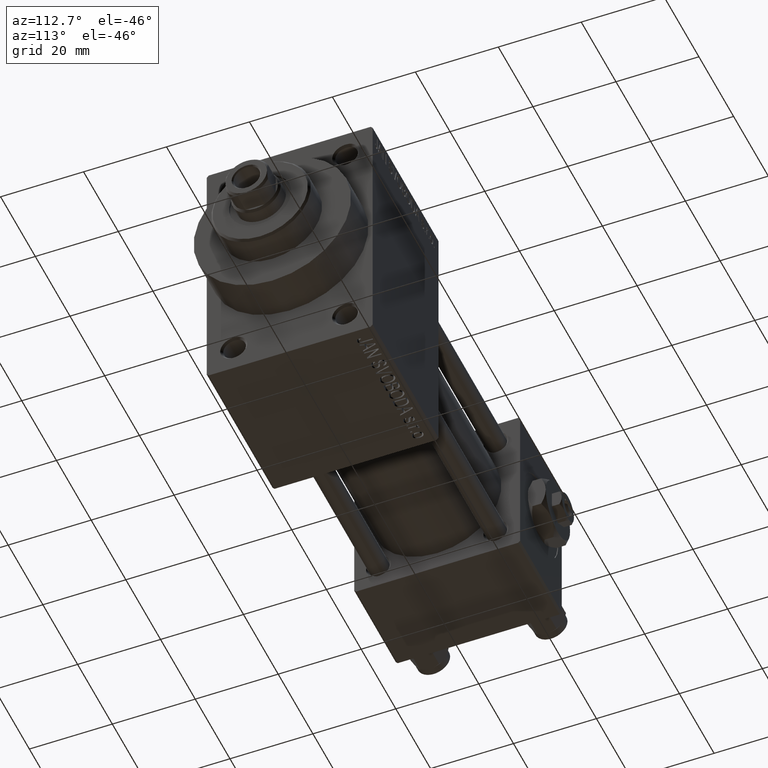
[diagram: clean part render]
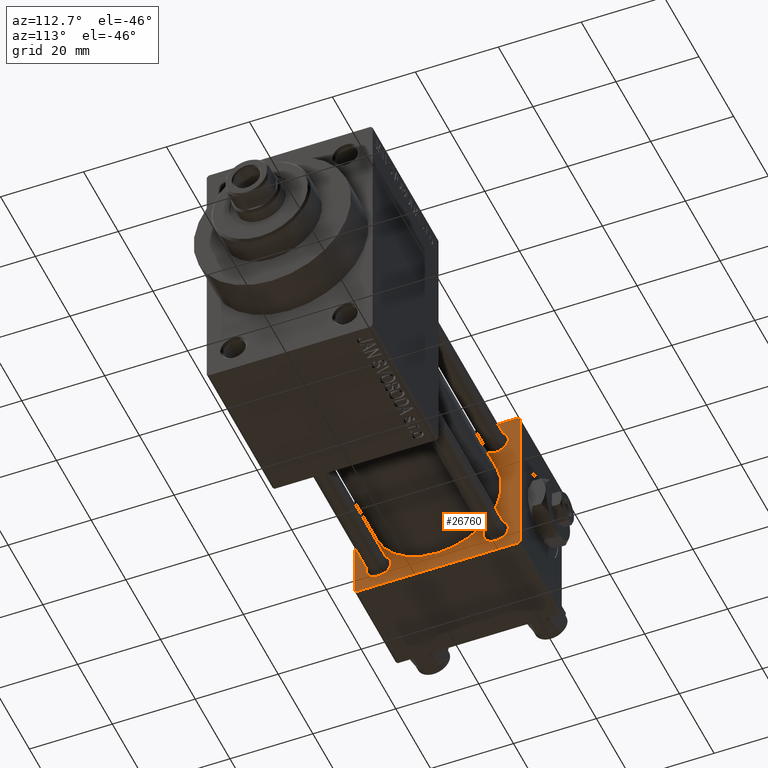
[diagram: same view with one face highlighted and labeled with its STEP entity id]
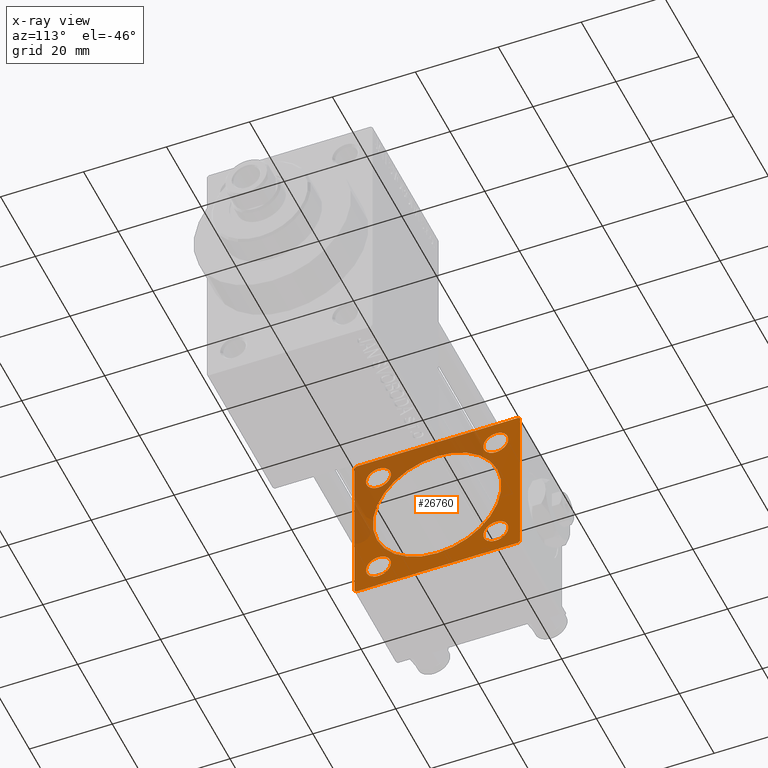
[diagram: x-ray of the same camera — body ghosted, the highlighted face saturated]
A machine part, auxiliary view. The second image highlights one B-rep face of the part: STEP entity #26760.
The next image is the same camera in x-ray: the body ghosted, the highlighted face saturated — about 35% of this face is hidden behind the body in this view.
In plain terms, the highlighted planar face has unit normal (-1, 0, 0).
Its self-contained STEP definition (entity closure, byte-faithful):
#290 = EDGE_LOOP ( 'NONE', ( #41539, #47013 ) ) ;
#565 = CARTESIAN_POINT ( 'NONE',  ( 24.00000000000000000, -19.50000000000000711, -20.00000000000000000 ) ) ;
#718 = EDGE_CURVE ( 'NONE', #2633, #23794, #43086, .T. ) ;
#759 = DIRECTION ( 'NONE',  ( 0.000000000000000000, 8.673617379884036705E-17, -1.000000000000000000 ) ) ;
#833 = CARTESIAN_POINT ( 'NONE',  ( 24.00000000000000000, -14.14999999999999503, 14.15000000000000391 ) ) ;
#1094 = EDGE_LOOP ( 'NONE', ( #17881, #33433 ) ) ;
#1192 = CARTESIAN_POINT ( 'NONE',  ( 24.00000000000000000, 20.00000000000000000, 20.00000000000000000 ) ) ;
#1813 = FACE_BOUND ( 'NONE', #1094, .T. ) ;
#1899 = EDGE_CURVE ( 'NONE', #27851, #4557, #23399, .T. ) ;
#2077 = CARTESIAN_POINT ( 'NONE',  ( 24.00000000000000000, 20.00000000000000000, 19.49999999999999289 ) ) ;
#2353 = ORIENTED_EDGE ( 'NONE', *, *, #26391, .F. ) ;
#2543 = ORIENTED_EDGE ( 'NONE', *, *, #23723, .T. ) ;
#2633 = VERTEX_POINT ( 'NONE', #35814 ) ;
#3378 = CARTESIAN_POINT ( 'NONE',  ( 24.00000000000000000, -14.14999999999999503, 11.15000000000002878 ) ) ;
#3504 = CIRCLE ( 'NONE', #31065, 2.999999999999945377 ) ;
#3593 = CARTESIAN_POINT ( 'NONE',  ( 24.00000000000000000, -20.00000000000000000, -19.49999999999999645 ) ) ;
#3639 = AXIS2_PLACEMENT_3D ( 'NONE', #31353, #41989, #8188 ) ;
#4126 = AXIS2_PLACEMENT_3D ( 'NONE', #13773, #32528, #24886 ) ;
#4517 = LINE ( 'NONE', #565, #45402 ) ;
#4557 = VERTEX_POINT ( 'NONE', #11707 ) ;
#4570 = LINE ( 'NONE', #23077, #36411 ) ;
#4580 = DIRECTION ( 'NONE',  ( 0.000000000000000000, -1.000000000000000000, 1.734723475976807094E-16 ) ) ;
#4763 = VERTEX_POINT ( 'NONE', #7164 ) ;
#5997 = ORIENTED_EDGE ( 'NONE', *, *, #29099, .T. ) ;
#6256 = DIRECTION ( 'NONE',  ( 0.000000000000000000, -1.000000000000000000, -2.602085213965210149E-16 ) ) ;
#6337 = DIRECTION ( 'NONE',  ( 0.000000000000000000, -0.7071067811865425767, 0.7071067811865525687 ) ) ;
#6727 = CARTESIAN_POINT ( 'NONE',  ( 24.00000000000000000, 19.50000000000000711, -20.00000000000000711 ) ) ;
#7164 = CARTESIAN_POINT ( 'NONE',  ( 24.00000000000000000, 14.14999999999999858, 17.14999999999994884 ) ) ;
#8030 = EDGE_LOOP ( 'NONE', ( #9257, #9994 ) ) ;
#8188 = DIRECTION ( 'NONE',  ( 0.000000000000000000, 0.000000000000000000, 1.000000000000000000 ) ) ;
#8590 = VERTEX_POINT ( 'NONE', #18581 ) ;
#8836 = CIRCLE ( 'NONE', #13589, 2.999999999999976463 ) ;
#9257 = ORIENTED_EDGE ( 'NONE', *, *, #1899, .F. ) ;
#9588 = DIRECTION ( 'NONE',  ( 0.000000000000000000, 0.000000000000000000, -1.000000000000000000 ) ) ;
#9769 = VERTEX_POINT ( 'NONE', #45168 ) ;
#9994 = ORIENTED_EDGE ( 'NONE', *, *, #21126, .F. ) ;
#10257 = AXIS2_PLACEMENT_3D ( 'NONE', #28699, #35355, #31903 ) ;
#10437 = VECTOR ( 'NONE', #759, 1000.000000000000000 ) ;
#11280 = LINE ( 'NONE', #30752, #34915 ) ;
#11707 = CARTESIAN_POINT ( 'NONE',  ( 24.00000000000000000, -7.038826752868131828E-16, -15.50000000000000000 ) ) ;
#12090 = CIRCLE ( 'NONE', #27876, 15.50000000000000000 ) ;
#12558 = VECTOR ( 'NONE', #4580, 1000.000000000000000 ) ;
#13193 = VERTEX_POINT ( 'NONE', #3593 ) ;
#13589 = AXIS2_PLACEMENT_3D ( 'NONE', #26135, #19454, #37471 ) ;
#13773 = CARTESIAN_POINT ( 'NONE',  ( 24.00000000000000000, -14.14999999999999503, -14.15000000000000391 ) ) ;
#14119 = LINE ( 'NONE', #31912, #28294 ) ;
#14198 = EDGE_CURVE ( 'NONE', #23794, #2633, #42642, .T. ) ;
#15043 = AXIS2_PLACEMENT_3D ( 'NONE', #34644, #45266, #23052 ) ;
#15257 = EDGE_CURVE ( 'NONE', #29297, #4763, #19799, .T. ) ;
#15264 = DIRECTION ( 'NONE',  ( 0.000000000000000000, 0.000000000000000000, 1.000000000000000000 ) ) ;
#15512 = AXIS2_PLACEMENT_3D ( 'NONE', #33306, #48366, #44653 ) ;
#15678 = CARTESIAN_POINT ( 'NONE',  ( 24.00000000000000000, 20.00000000000000000, -20.00000000000000711 ) ) ;
#16160 = VERTEX_POINT ( 'NONE', #29580 ) ;
#16469 = ORIENTED_EDGE ( 'NONE', *, *, #40934, .T. ) ;
#16481 = EDGE_CURVE ( 'NONE', #22692, #17520, #4570, .T. ) ;
#16706 = CARTESIAN_POINT ( 'NONE',  ( 24.00000000000000000, -14.14999999999999503, -14.15000000000000391 ) ) ;
#17520 = VERTEX_POINT ( 'NONE', #20245 ) ;
#17645 = ORIENTED_EDGE ( 'NONE', *, *, #48784, .T. ) ;
#17881 = ORIENTED_EDGE ( 'NONE', *, *, #19658, .T. ) ;
#18252 = EDGE_CURVE ( 'NONE', #47395, #13193, #43754, .T. ) ;
#18337 = CIRCLE ( 'NONE', #19097, 2.999999999999976463 ) ;
#18357 = CARTESIAN_POINT ( 'NONE',  ( 24.00000000000000000, -2.602085213965210642E-15, 0.000000000000000000 ) ) ;
#18458 = CARTESIAN_POINT ( 'NONE',  ( 24.00000000000000000, 14.14999999999999858, 14.15000000000000036 ) ) ;
#18581 = CARTESIAN_POINT ( 'NONE',  ( 24.00000000000000000, -19.49999999999999289, 19.99999999999998934 ) ) ;
#19097 = AXIS2_PLACEMENT_3D ( 'NONE', #833, #31422, #46484 ) ;
#19370 = ORIENTED_EDGE ( 'NONE', *, *, #35513, .T. ) ;
#19420 = DIRECTION ( 'NONE',  ( 0.000000000000000000, 0.000000000000000000, 1.000000000000000000 ) ) ;
#19454 = DIRECTION ( 'NONE',  ( -1.000000000000000000, -0.000000000000000000, -0.000000000000000000 ) ) ;
#19489 = CARTESIAN_POINT ( 'NONE',  ( 24.00000000000000000, -20.00000000000000355, 19.49999999999998224 ) ) ;
#19617 = DIRECTION ( 'NONE',  ( -0.000000000000000000, 0.7071067811865524577, 0.7071067811865426878 ) ) ;
#19658 = EDGE_CURVE ( 'NONE', #9769, #16160, #27844, .T. ) ;
#19799 = CIRCLE ( 'NONE', #39509, 2.999999999999945377 ) ;
#20245 = CARTESIAN_POINT ( 'NONE',  ( 24.00000000000000000, 20.00000000000000000, -19.50000000000002132 ) ) ;
#21126 = EDGE_CURVE ( 'NONE', #4557, #27851, #12090, .T. ) ;
#21141 = CARTESIAN_POINT ( 'NONE',  ( 24.00000000000000000, 19.50000000000000000, 20.00000000000000000 ) ) ;
#21890 = CARTESIAN_POINT ( 'NONE',  ( 24.00000000000000000, 19.50000000000000000, 20.00000000000000000 ) ) ;
#22181 = DIRECTION ( 'NONE',  ( -1.000000000000000000, -0.000000000000000000, -0.000000000000000000 ) ) ;
#22692 = VERTEX_POINT ( 'NONE', #6727 ) ;
#22729 = CARTESIAN_POINT ( 'NONE',  ( 24.00000000000000000, 14.14999999999999858, -11.15000000000005365 ) ) ;
#23015 = ORIENTED_EDGE ( 'NONE', *, *, #36940, .T. ) ;
#23052 = DIRECTION ( 'NONE',  ( 0.000000000000000000, 0.000000000000000000, 1.000000000000000000 ) ) ;
#23064 = EDGE_LOOP ( 'NONE', ( #37204, #16469 ) ) ;
#23077 = CARTESIAN_POINT ( 'NONE',  ( 24.00000000000000000, 20.00000000000000000, -19.50000000000002132 ) ) ;
#23399 = CIRCLE ( 'NONE', #15512, 15.50000000000000000 ) ;
#23430 = VERTEX_POINT ( 'NONE', #21890 ) ;
#23723 = EDGE_CURVE ( 'NONE', #23430, #8590, #14119, .T. ) ;
#23794 = VERTEX_POINT ( 'NONE', #22729 ) ;
#24012 = FACE_BOUND ( 'NONE', #8030, .T. ) ;
#24032 = VERTEX_POINT ( 'NONE', #46415 ) ;
#24109 = DIRECTION ( 'NONE',  ( -1.000000000000000000, -0.000000000000000000, -0.000000000000000000 ) ) ;
#24886 = DIRECTION ( 'NONE',  ( 0.000000000000000000, 0.000000000000000000, 1.000000000000000000 ) ) ;
#24997 = CARTESIAN_POINT ( 'NONE',  ( 24.00000000000000000, -20.00000000000000355, 19.99999999999998934 ) ) ;
#26135 = CARTESIAN_POINT ( 'NONE',  ( 24.00000000000000000, -14.14999999999999503, 14.15000000000000391 ) ) ;
#26391 = EDGE_CURVE ( 'NONE', #22692, #38037, #38389, .T. ) ;
#26465 = CARTESIAN_POINT ( 'NONE',  ( 24.00000000000000000, -19.50000000000000711, -20.00000000000000000 ) ) ;
#26474 = ORIENTED_EDGE ( 'NONE', *, *, #18252, .T. ) ;
#26722 = DIRECTION ( 'NONE',  ( 1.000000000000000000, 0.000000000000000000, 0.000000000000000000 ) ) ;
#26760 = ADVANCED_FACE ( 'NONE', ( #1813, #32392, #39312, #47212, #24012, #46716 ), #39066, .F. ) ;
#27539 = ORIENTED_EDGE ( 'NONE', *, *, #37417, .T. ) ;
#27644 = VECTOR ( 'NONE', #6337, 999.9999999999998863 ) ;
#27844 = CIRCLE ( 'NONE', #39652, 2.999999999999976463 ) ;
#27851 = VERTEX_POINT ( 'NONE', #30619 ) ;
#27876 = AXIS2_PLACEMENT_3D ( 'NONE', #18357, #26722, #31390 ) ;
#28294 = VECTOR ( 'NONE', #6256, 1000.000000000000000 ) ;
#28699 = CARTESIAN_POINT ( 'NONE',  ( 24.00000000000000000, 0.000000000000000000, 0.000000000000000000 ) ) ;
#29099 = EDGE_CURVE ( 'NONE', #45004, #23430, #32957, .T. ) ;
#29297 = VERTEX_POINT ( 'NONE', #42314 ) ;
#29580 = CARTESIAN_POINT ( 'NONE',  ( 24.00000000000000000, -14.14999999999999503, -11.15000000000002878 ) ) ;
#30430 = DIRECTION ( 'NONE',  ( 0.000000000000000000, 0.7071067811865401342, -0.7071067811865549002 ) ) ;
#30619 = CARTESIAN_POINT ( 'NONE',  ( 24.00000000000000000, -2.602085213965210642E-15, 15.50000000000000000 ) ) ;
#30752 = CARTESIAN_POINT ( 'NONE',  ( 24.00000000000000000, -20.00000000000000355, 19.49999999999998224 ) ) ;
#31065 = AXIS2_PLACEMENT_3D ( 'NONE', #45363, #22181, #15264 ) ;
#31353 = CARTESIAN_POINT ( 'NONE',  ( 24.00000000000000000, 14.14999999999999858, -14.15000000000000036 ) ) ;
#31390 = DIRECTION ( 'NONE',  ( 0.000000000000000000, 0.000000000000000000, 1.000000000000000000 ) ) ;
#31402 = ORIENTED_EDGE ( 'NONE', *, *, #16481, .T. ) ;
#31422 = DIRECTION ( 'NONE',  ( -1.000000000000000000, -0.000000000000000000, -0.000000000000000000 ) ) ;
#31529 = EDGE_LOOP ( 'NONE', ( #23015, #19370 ) ) ;
#31903 = DIRECTION ( 'NONE',  ( -0.000000000000000000, 0.000000000000000000, 1.000000000000000000 ) ) ;
#31912 = CARTESIAN_POINT ( 'NONE',  ( 24.00000000000000000, 20.00000000000000000, 20.00000000000000000 ) ) ;
#32392 = FACE_BOUND ( 'NONE', #290, .T. ) ;
#32528 = DIRECTION ( 'NONE',  ( -1.000000000000000000, -0.000000000000000000, -0.000000000000000000 ) ) ;
#32957 = LINE ( 'NONE', #21141, #27644 ) ;
#33306 = CARTESIAN_POINT ( 'NONE',  ( 24.00000000000000000, -2.602085213965210642E-15, 0.000000000000000000 ) ) ;
#33433 = ORIENTED_EDGE ( 'NONE', *, *, #36437, .T. ) ;
#33494 = DIRECTION ( 'NONE',  ( -1.000000000000000000, -0.000000000000000000, -0.000000000000000000 ) ) ;
#34019 = VECTOR ( 'NONE', #9588, 1000.000000000000000 ) ;
#34082 = ORIENTED_EDGE ( 'NONE', *, *, #35633, .F. ) ;
#34644 = CARTESIAN_POINT ( 'NONE',  ( 24.00000000000000000, 14.14999999999999858, -14.15000000000000036 ) ) ;
#34915 = VECTOR ( 'NONE', #42120, 1000.000000000000114 ) ;
#35355 = DIRECTION ( 'NONE',  ( -1.000000000000000000, 0.000000000000000000, -0.000000000000000000 ) ) ;
#35513 = EDGE_CURVE ( 'NONE', #24032, #41348, #8836, .T. ) ;
#35633 = EDGE_CURVE ( 'NONE', #45004, #17520, #35737, .T. ) ;
#35737 = LINE ( 'NONE', #1192, #34019 ) ;
#35814 = CARTESIAN_POINT ( 'NONE',  ( 24.00000000000000000, 14.14999999999999858, -17.14999999999994884 ) ) ;
#36411 = VECTOR ( 'NONE', #19617, 1000.000000000000000 ) ;
#36437 = EDGE_CURVE ( 'NONE', #16160, #9769, #40394, .T. ) ;
#36940 = EDGE_CURVE ( 'NONE', #41348, #24032, #18337, .T. ) ;
#37204 = ORIENTED_EDGE ( 'NONE', *, *, #15257, .T. ) ;
#37417 = EDGE_CURVE ( 'NONE', #8590, #47395, #11280, .T. ) ;
#37471 = DIRECTION ( 'NONE',  ( 0.000000000000000000, 0.000000000000000000, 1.000000000000000000 ) ) ;
#38037 = VERTEX_POINT ( 'NONE', #26465 ) ;
#38389 = LINE ( 'NONE', #15678, #12558 ) ;
#39066 = PLANE ( 'NONE',  #10257 ) ;
#39312 = FACE_BOUND ( 'NONE', #31529, .T. ) ;
#39509 = AXIS2_PLACEMENT_3D ( 'NONE', #18458, #33494, #48558 ) ;
#39652 = AXIS2_PLACEMENT_3D ( 'NONE', #16706, #24109, #19420 ) ;
#40394 = CIRCLE ( 'NONE', #4126, 2.999999999999976463 ) ;
#40934 = EDGE_CURVE ( 'NONE', #4763, #29297, #3504, .T. ) ;
#41348 = VERTEX_POINT ( 'NONE', #3378 ) ;
#41539 = ORIENTED_EDGE ( 'NONE', *, *, #718, .T. ) ;
#41582 = EDGE_LOOP ( 'NONE', ( #2353, #31402, #34082, #5997, #2543, #27539, #26474, #17645 ) ) ;
#41989 = DIRECTION ( 'NONE',  ( -1.000000000000000000, -0.000000000000000000, -0.000000000000000000 ) ) ;
#42120 = DIRECTION ( 'NONE',  ( -0.000000000000000000, -0.7071067811865500152, -0.7071067811865451302 ) ) ;
#42314 = CARTESIAN_POINT ( 'NONE',  ( 24.00000000000000000, 14.14999999999999858, 11.15000000000005365 ) ) ;
#42642 = CIRCLE ( 'NONE', #15043, 2.999999999999945377 ) ;
#43086 = CIRCLE ( 'NONE', #3639, 2.999999999999945377 ) ;
#43754 = LINE ( 'NONE', #24997, #10437 ) ;
#44653 = DIRECTION ( 'NONE',  ( 0.000000000000000000, 0.000000000000000000, 1.000000000000000000 ) ) ;
#45004 = VERTEX_POINT ( 'NONE', #2077 ) ;
#45168 = CARTESIAN_POINT ( 'NONE',  ( 24.00000000000000000, -14.14999999999999503, -17.14999999999998082 ) ) ;
#45266 = DIRECTION ( 'NONE',  ( -1.000000000000000000, -0.000000000000000000, -0.000000000000000000 ) ) ;
#45363 = CARTESIAN_POINT ( 'NONE',  ( 24.00000000000000000, 14.14999999999999858, 14.15000000000000036 ) ) ;
#45402 = VECTOR ( 'NONE', #30430, 1000.000000000000000 ) ;
#46415 = CARTESIAN_POINT ( 'NONE',  ( 24.00000000000000000, -14.14999999999999503, 17.14999999999998082 ) ) ;
#46484 = DIRECTION ( 'NONE',  ( 0.000000000000000000, 0.000000000000000000, 1.000000000000000000 ) ) ;
#46716 = FACE_OUTER_BOUND ( 'NONE', #41582, .T. ) ;
#47013 = ORIENTED_EDGE ( 'NONE', *, *, #14198, .T. ) ;
#47212 = FACE_BOUND ( 'NONE', #23064, .T. ) ;
#47395 = VERTEX_POINT ( 'NONE', #19489 ) ;
#48366 = DIRECTION ( 'NONE',  ( 1.000000000000000000, 0.000000000000000000, 0.000000000000000000 ) ) ;
#48558 = DIRECTION ( 'NONE',  ( 0.000000000000000000, 0.000000000000000000, 1.000000000000000000 ) ) ;
#48784 = EDGE_CURVE ( 'NONE', #13193, #38037, #4517, .T. ) ;